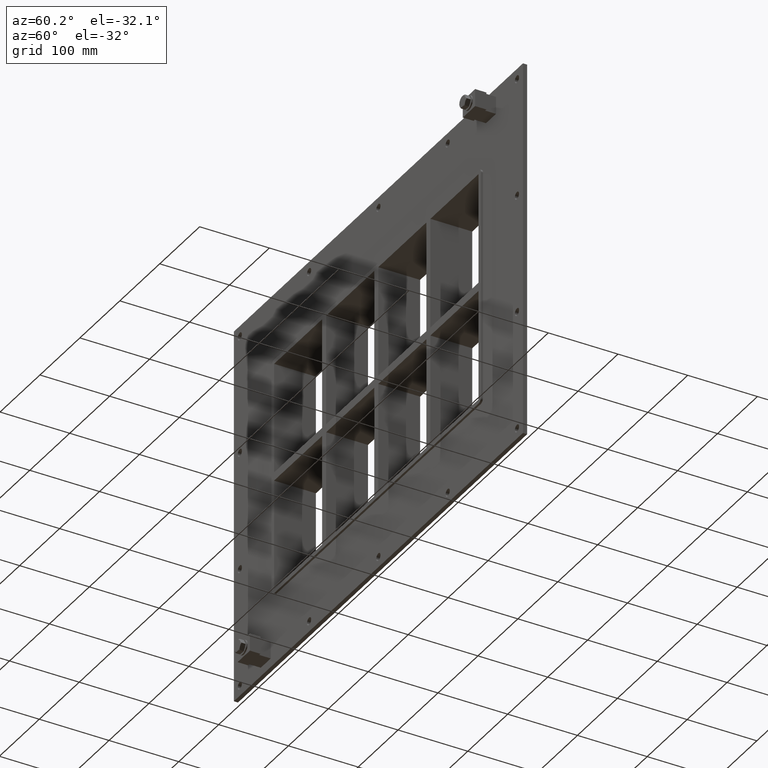
[diagram: clean part render]
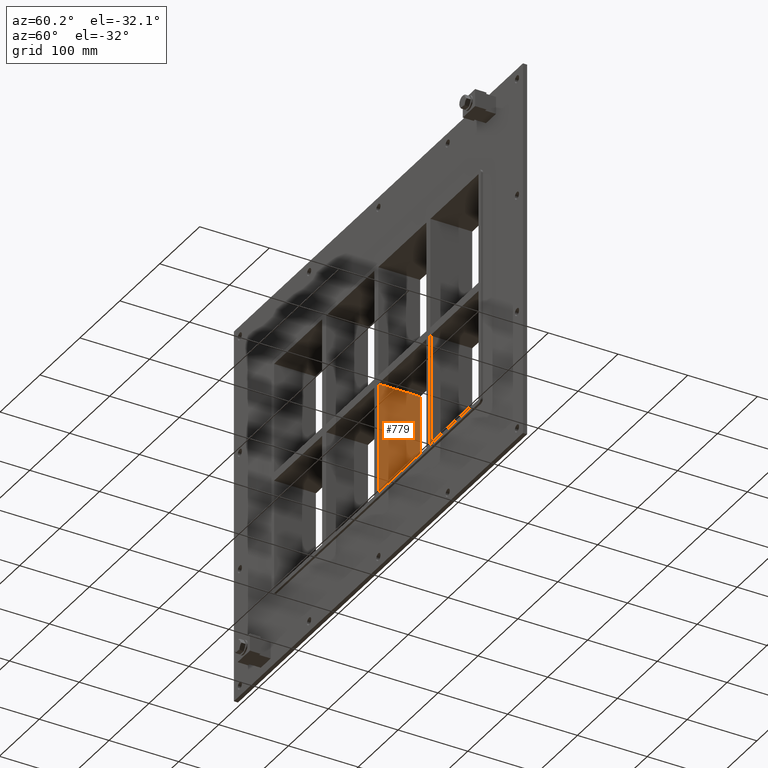
[diagram: same view with one face highlighted and labeled with its STEP entity id]
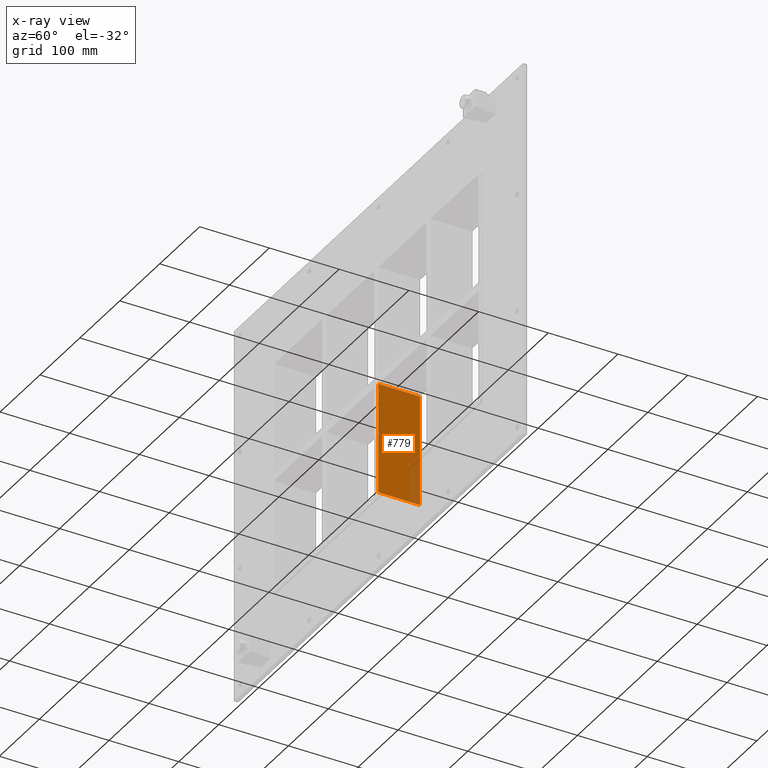
[diagram: x-ray of the same camera — body ghosted, the highlighted face saturated]
A machine part, auxiliary view. The second image highlights one B-rep face of the part: STEP entity #779.
The next image is the same camera in x-ray: the body ghosted, the highlighted face saturated — about 10% of this face is hidden behind the body in this view.
In plain terms, the highlighted planar face has unit normal (1, 0, 0).
Its self-contained STEP definition (entity closure, byte-faithful):
#740=CARTESIAN_POINT('',(5.000000000007283,-3.0,165.5));
#741=DIRECTION('',(1.0,0.0,0.0));
#742=DIRECTION('',(0.0,0.0,-1.0));
#743=AXIS2_PLACEMENT_3D('',#740,#741,#742);
#744=PLANE('',#743);
#745=CARTESIAN_POINT('',(5.000000000007283,-3.0,-6.000000000010672));
#746=VERTEX_POINT('',#745);
#747=CARTESIAN_POINT('',(5.000000000007283,57.0,-6.000000000010672));
#748=VERTEX_POINT('',#747);
#749=CARTESIAN_POINT('',(5.000000000007283,-3.0,-6.000000000010672));
#750=DIRECTION('',(0.0,1.0,0.0));
#751=VECTOR('',#750,60.0);
#752=LINE('',#749,#751);
#753=EDGE_CURVE('',#746,#748,#752,.T.);
#754=ORIENTED_EDGE('',*,*,#753,.F.);
#755=CARTESIAN_POINT('',(5.000000000007283,-3.0,-165.49999999998175));
#756=VERTEX_POINT('',#755);
#757=CARTESIAN_POINT('',(5.000000000007283,-3.0,-6.000000000010687));
#758=DIRECTION('',(0.0,0.0,-1.0));
#759=VECTOR('',#758,159.49999999997107);
#760=LINE('',#757,#759);
#761=EDGE_CURVE('',#746,#756,#760,.T.);
#762=ORIENTED_EDGE('',*,*,#761,.T.);
#763=CARTESIAN_POINT('',(5.000000000007283,57.0,-165.49999999998175));
#764=VERTEX_POINT('',#763);
#765=CARTESIAN_POINT('',(5.000000000007283,57.000000000000007,-165.5));
#766=DIRECTION('',(0.0,-1.0,0.0));
#767=VECTOR('',#766,60.000000000000007);
#768=LINE('',#765,#767);
#769=EDGE_CURVE('',#764,#756,#768,.T.);
#770=ORIENTED_EDGE('',*,*,#769,.F.);
#771=CARTESIAN_POINT('',(5.000000000007283,57.0,-6.000000000010687));
#772=DIRECTION('',(0.0,0.0,-1.0));
#773=VECTOR('',#772,159.49999999997107);
#774=LINE('',#771,#773);
#775=EDGE_CURVE('',#748,#764,#774,.T.);
#776=ORIENTED_EDGE('',*,*,#775,.F.);
#777=EDGE_LOOP('',(#754,#762,#770,#776));
#778=FACE_OUTER_BOUND('',#777,.T.);
#779=ADVANCED_FACE('',(#778),#744,.T.);